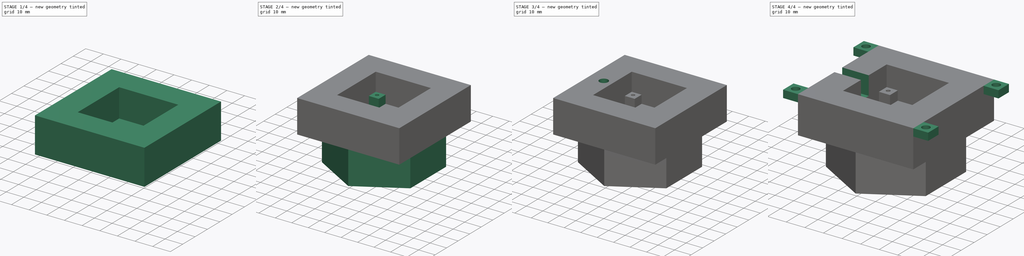
[diagram: build sequence overview — one tinted view per stage of 4, left to right]
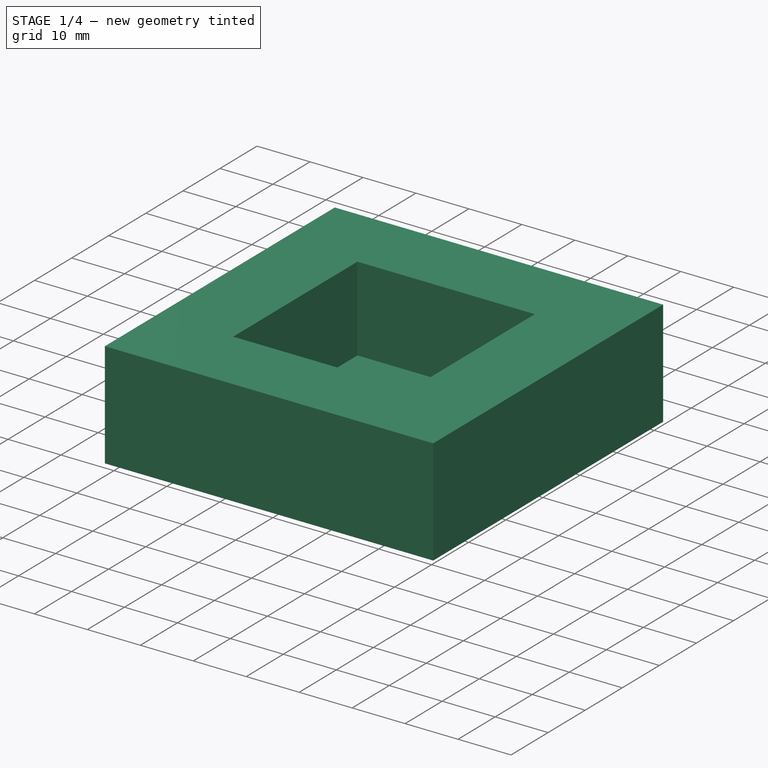
[diagram: stage 1 of 4 — iso view after this stage's code; geometry added in this stage tinted green]
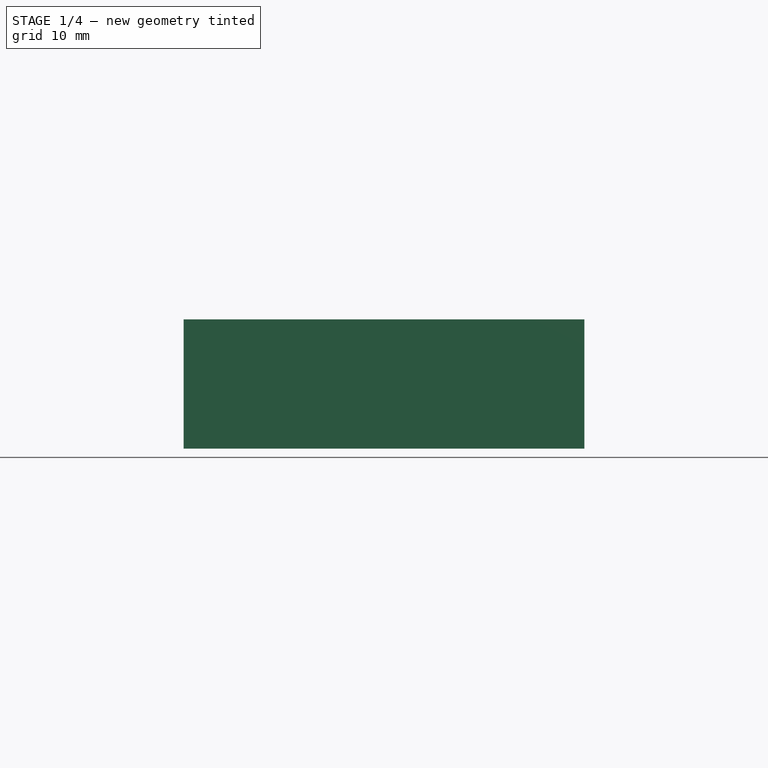
[diagram: stage 1 of 4 — front view after this stage's code; geometry added in this stage tinted green]
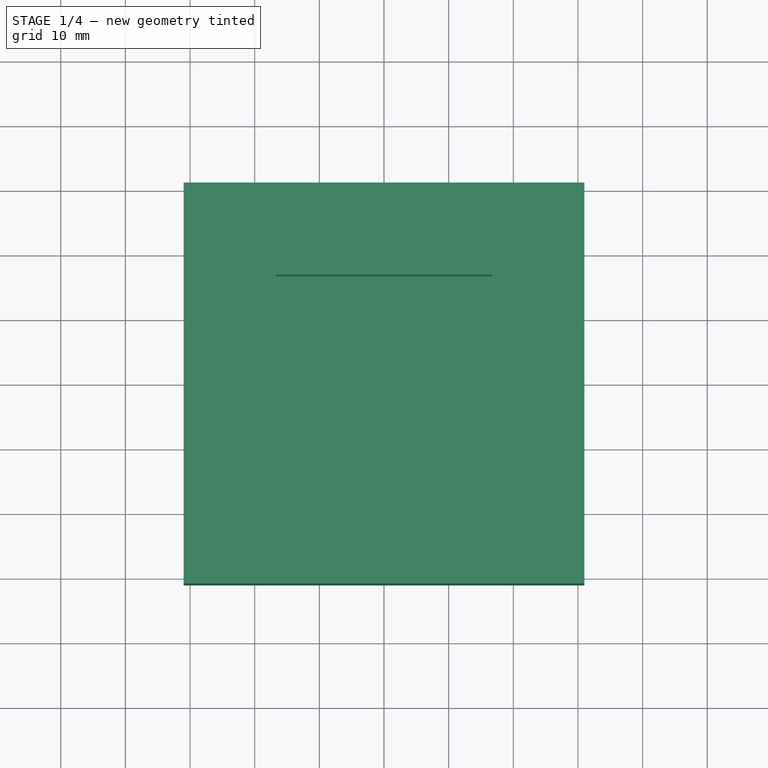
[diagram: stage 1 of 4 — top view after this stage's code; geometry added in this stage tinted green]
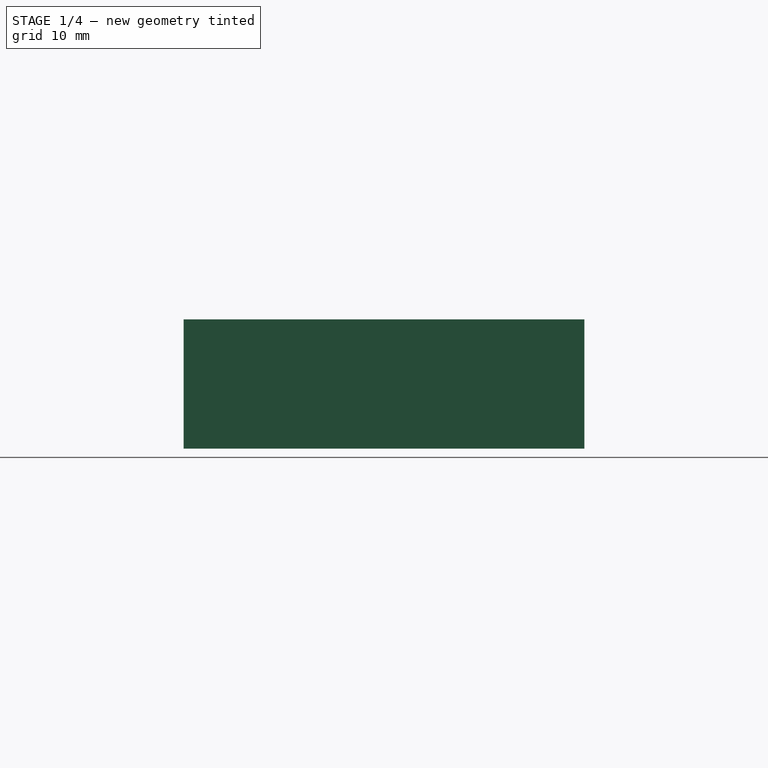
[diagram: stage 1 of 4 — right view after this stage's code; geometry added in this stage tinted green]
FCSTD DOCUMENT  (FreeCAD 0.20R29177 +233 (Git))
Label: cam_down_v2
License: All rights reserved
LicenseURL: http://en.wikipedia.org/wiki/All_rights_reserved
objects: Sketcher::SketchObject×10, PartDesign::Pad×5, PartDesign::Pocket×5, PartDesign::Body×1
note: 31 computed .brp shape members not serialized (recipe doc carries the construction recipe); baked Part::Feature solids carry a one-line shape summary decoded from their .brp

FEATURE [Sketcher::SketchObject] Sketch
  FullyConstrained = true
  MapMode = 5
  Support = -> [XY_Plane]
  sketch-geometry (4):
    g0: LineSegment StartX=-31 StartY=31 StartZ=0 EndX=31 EndY=31 EndZ=0
    g1: LineSegment StartX=31 StartY=31 StartZ=0 EndX=31 EndY=-31 EndZ=0
    g2: LineSegment StartX=31 StartY=-31 StartZ=0 EndX=-31 EndY=-31 EndZ=0
    g3: LineSegment StartX=-31 StartY=-31 StartZ=0 EndX=-31 EndY=31 EndZ=0
  constraints (10):
    c: Coincident(g0,g1)
    c: Coincident(g1,g2)
    c: Coincident(g2,g3)
    c: Coincident(g3,g0)
    c: Horizontal(g2)
    c: Vertical(g1)
    c: DistanceX(g0,g0) = 62
    c: DistanceY(g1,g1) = 62
    c: Symmetric(g0,g0,g-2)
    c: Symmetric(g0,g2,g-1)
FEATURE [PartDesign::Pad] Pad
  Direction = (0,0,1)
  Length = 20
  Length2 = 10
  Profile = -> Sketch
  ReferenceAxis = -> Sketch [N_Axis]
  Type = 0
FEATURE [Sketcher::SketchObject] Sketch001
  FullyConstrained = true
  MapMode = 5
  Placement = pos=(0,0,20) rot=(0,0,1;0rad)
  Support = -> [Pad]
  sketch-geometry (4):
    g0: LineSegment StartX=-16.75 StartY=16.75 StartZ=0 EndX=16.75 EndY=16.75 EndZ=0
    g1: LineSegment StartX=16.75 StartY=16.75 StartZ=0 EndX=16.75 EndY=-16.75 EndZ=0
    g2: LineSegment StartX=16.75 StartY=-16.75 StartZ=0 EndX=-16.75 EndY=-16.75 EndZ=0
    g3: LineSegment StartX=-16.75 StartY=-16.75 StartZ=0 EndX=-16.75 EndY=16.75 EndZ=0
  constraints (10):
    c: Coincident(g0,g1)
    c: Coincident(g1,g2)
    c: Coincident(g2,g3)
    c: Coincident(g3,g0)
    c: Horizontal(g2)
    c: Vertical(g1)
    c: DistanceY(g1,g1) = 33.5
    c: DistanceX(g2,g2) = 33.5
    c: Symmetric(g0,g0,g-2)
    c: Symmetric(g0,g2,g-1)
FEATURE [PartDesign::Pocket] Pocket
  BaseFeature = -> Pad
  Direction = (0,0,-1)
  Length = 16
  Length2 = 5
  Profile = -> Sketch001
  ReferenceAxis = -> Sketch001 [N_Axis]
  Type = 0
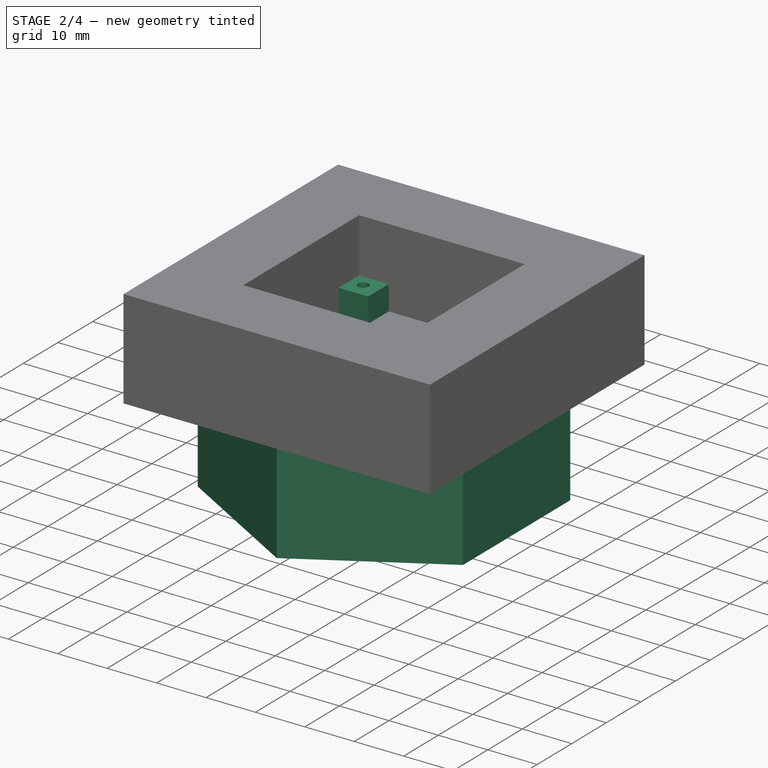
[diagram: stage 2 of 4 — iso view after this stage's code; geometry added in this stage tinted green]
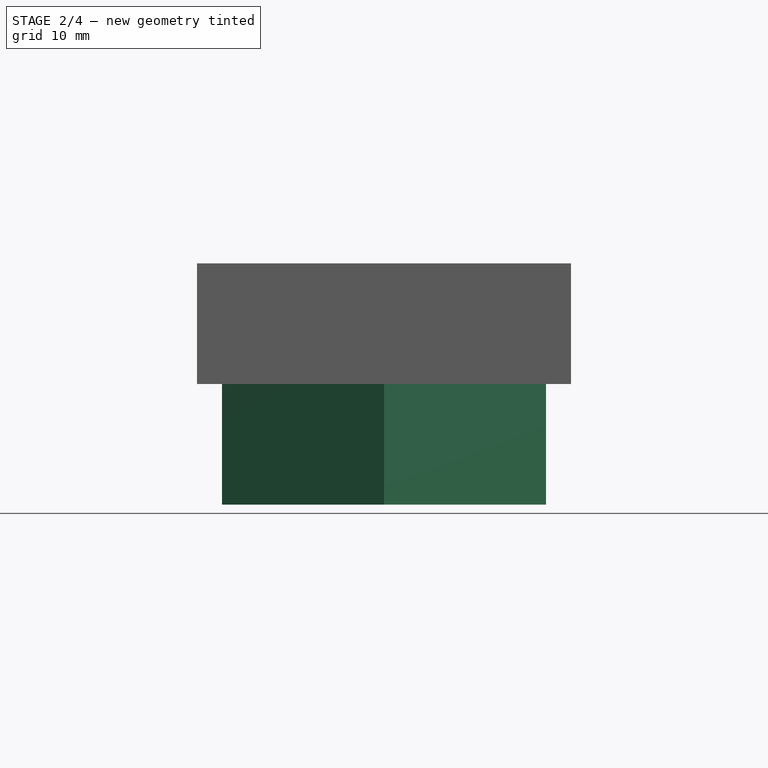
[diagram: stage 2 of 4 — front view after this stage's code; geometry added in this stage tinted green]
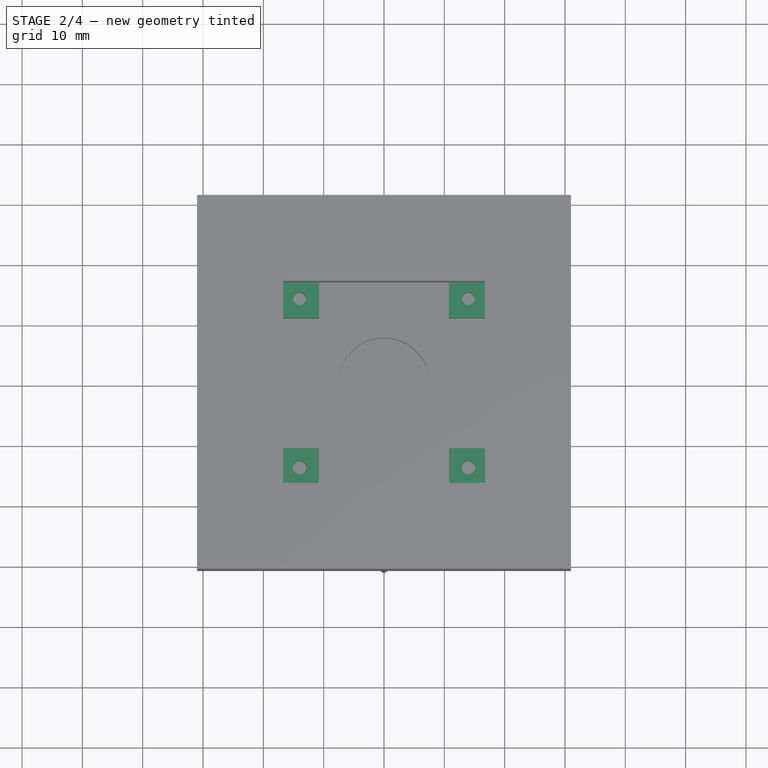
[diagram: stage 2 of 4 — top view after this stage's code; geometry added in this stage tinted green]
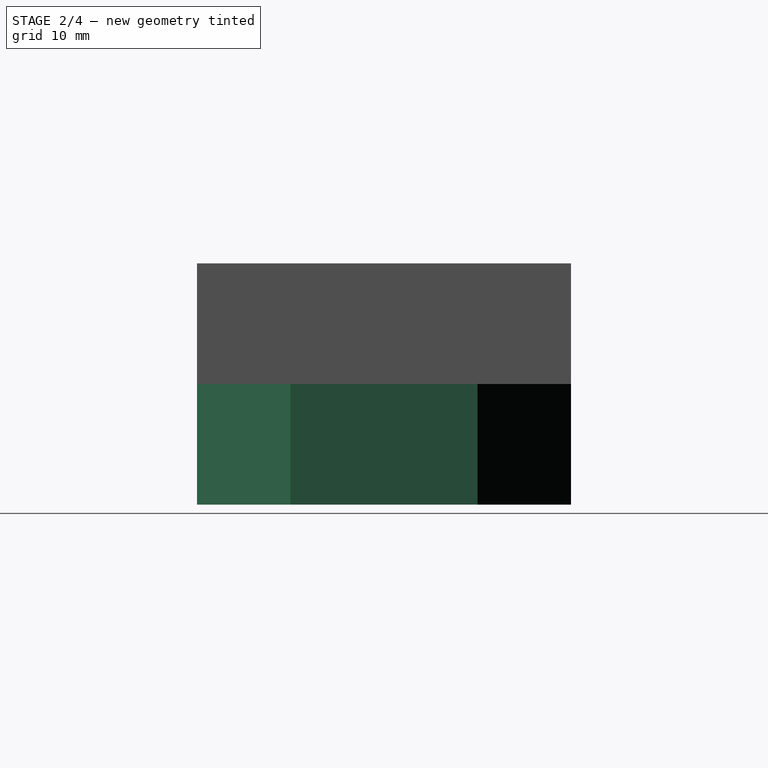
[diagram: stage 2 of 4 — right view after this stage's code; geometry added in this stage tinted green]
FEATURE [Sketcher::SketchObject] Sketch002
  FullyConstrained = false
  MapMode = 5
  Placement = pos=(0,0,4) rot=(0,0,1;0rad)
  Support = -> [Pocket]
  sketch-geometry (1):
    g0: Circle CenterX=0 CenterY=0 CenterZ=0 NormalX=0 NormalY=0 NormalZ=1 AngleXU=0 Radius=7.57861
  constraints (1):
    c: Coincident(g0,g-1)
FEATURE [PartDesign::Pocket] Pocket001
  BaseFeature = -> Pocket
  Direction = (0,0,-1)
  Length = 5
  Length2 = 5
  Profile = -> Sketch002
  ReferenceAxis = -> Sketch002 [N_Axis]
  Type = 0
FEATURE [Sketcher::SketchObject] Sketch003
  ExternalGeometry = -> [Pocket001]
  FullyConstrained = false
  MapMode = 5
  Placement = pos=(0,0,4) rot=(0,0,1;0rad)
  Support = -> [Pocket001]
  sketch-geometry (20):
    g0: LineSegment StartX=-16.75 StartY=16.75 StartZ=0 EndX=-10.763 EndY=16.75 EndZ=0
    g1: LineSegment StartX=-10.763 StartY=16.75 StartZ=0 EndX=-10.763 EndY=10.7788 EndZ=0
    g2: LineSegment StartX=-10.763 StartY=10.7788 StartZ=0 EndX=-16.75 EndY=10.7788 EndZ=0
    g3: LineSegment StartX=-16.75 StartY=10.7788 StartZ=0 EndX=-16.75 EndY=16.75 EndZ=0
    g4: LineSegment StartX=-16.75 StartY=-16.75 StartZ=0 EndX=-10.7906 EndY=-16.75 EndZ=0
    g5: LineSegment StartX=-10.7906 StartY=-16.75 StartZ=0 EndX=-10.7906 EndY=-10.7578 EndZ=0
    g6: LineSegment StartX=-10.7906 StartY=-10.7578 StartZ=0 EndX=-16.75 EndY=-10.7578 EndZ=0
    g7: LineSegment StartX=-16.75 StartY=-10.7578 StartZ=0 EndX=-16.75 EndY=-16.75 EndZ=0
    g8: LineSegment StartX=16.75 StartY=-16.75 StartZ=0 EndX=10.7923 EndY=-16.75 EndZ=0
    g9: LineSegment StartX=10.7923 StartY=-16.75 StartZ=0 EndX=10.7923 EndY=-10.7967 EndZ=0
    g10: LineSegment StartX=10.7923 StartY=-10.7967 StartZ=0 EndX=16.75 EndY=-10.7967 EndZ=0
    g11: LineSegment StartX=16.75 StartY=-10.7967 StartZ=0 EndX=16.75 EndY=-16.75 EndZ=0
    g12: LineSegment StartX=16.75 StartY=16.75 StartZ=0 EndX=10.7559 EndY=16.75 EndZ=0
    g13: LineSegment StartX=10.7559 StartY=16.75 StartZ=0 EndX=10.7559 EndY=10.7913 EndZ=0
    g14: LineSegment StartX=10.7559 StartY=10.7913 StartZ=0 EndX=16.75 EndY=10.7913 EndZ=0
    g15: LineSegment StartX=16.75 StartY=10.7913 StartZ=0 EndX=16.75 EndY=16.75 EndZ=0
    g16: Circle CenterX=-14 CenterY=14 CenterZ=0 NormalX=0 NormalY=0 NormalZ=1 AngleXU=0 Radius=1.05689
    g17: Circle CenterX=14 CenterY=14 CenterZ=0 NormalX=0 NormalY=0 NormalZ=1 AngleXU=0 Radius=1.05178
    g18: Circle CenterX=14 CenterY=-14 CenterZ=0 NormalX=0 NormalY=0 NormalZ=1 AngleXU=0 Radius=1.1422
    g19: Circle CenterX=-14 CenterY=-14 CenterZ=0 NormalX=0 NormalY=0 NormalZ=1 AngleXU=0 Radius=1.1337
  constraints (44):
    c: Coincident(g0,g1)
    c: Coincident(g1,g2)
    c: Coincident(g2,g3)
    c: Coincident(g3,g0)
    c: Horizontal(g0)
    c: Horizontal(g2)
    c: Vertical(g1)
    c: Vertical(g3)
    c: Coincident(g0,g-4)
    c: Coincident(g4,g5)
    c: Coincident(g5,g6)
    c: Coincident(g6,g7)
    c: Coincident(g7,g4)
    c: Horizontal(g4)
    c: Horizontal(g6)
    c: Vertical(g5)
    c: Vertical(g7)
    c: Coincident(g4,g-6)
    c: Coincident(g8,g9)
    c: Coincident(g9,g10)
    c: Coincident(g10,g11)
    c: Coincident(g11,g8)
    c: Horizontal(g8)
    c: Horizontal(g10)
    c: Vertical(g9)
    c: Vertical(g11)
    c: Coincident(g8,g-6)
    c: Coincident(g12,g13)
    c: Coincident(g13,g14)
    c: Coincident(g14,g15)
    c: Coincident(g15,g12)
    c: Horizontal(g12)
    c: Horizontal(g14)
    c: Vertical(g13)
    c: Vertical(g15)
    c: Coincident(g12,g-5)
    c: Distance(g19,g-2) = 14
    c: Distance(g18,g-2) = 14
    c: Distance(g19,g-1) = 14
    c: Distance(g18,g-1) = 14
    c: Distance(g17,g-1) = 14
    c: Distance(g17,g-2) = 14
    c: Distance(g16,g-1) = 14
    c: Distance(g16,g-2) = 14
FEATURE [PartDesign::Pad] Pad001
  BaseFeature = -> Pocket001
  Direction = (0,0,1)
  Length = 5
  Length2 = 10
  Profile = -> Sketch003
  ReferenceAxis = -> Sketch003 [N_Axis]
  Type = 0
FEATURE [Sketcher::SketchObject] Sketch004
  FullyConstrained = true
  MapMode = 5
  Placement = pos=(0,0,0) rot=(1,0,0;3.14159rad)
  Support = -> [Pad001]
  sketch-geometry (7):
    g0: LineSegment StartX=0 StartY=-31 StartZ=0 EndX=26.8468 EndY=-15.5 EndZ=0
    g1: LineSegment StartX=26.8468 StartY=-15.5 StartZ=0 EndX=26.8468 EndY=15.5 EndZ=0
    g2: LineSegment StartX=26.8468 StartY=15.5 StartZ=0 EndX=-1.16103e-11 EndY=31 EndZ=0
    g3: LineSegment StartX=-1.16103e-11 StartY=31 StartZ=0 EndX=-26.8468 EndY=15.5 EndZ=0
    g4: LineSegment StartX=-26.8468 StartY=15.5 StartZ=0 EndX=-26.8468 EndY=-15.5 EndZ=0
    g5: LineSegment StartX=-26.8468 StartY=-15.5 StartZ=0 EndX=0 EndY=-31 EndZ=0
    g6: Circle CenterX=0 CenterY=0 CenterZ=0 NormalX=0 NormalY=0 NormalZ=1 AngleXU=0 Radius=31
  constraints (16):
    c: Coincident(g0,g1)
    c: Coincident(g1,g2)
    c: Coincident(g2,g3)
    c: Coincident(g3,g4)
    c: Coincident(g4,g5)
    c: Coincident(g5,g0)
    c: Equal(g0, g1-g5) x5
    c: PointOnObject(g0,g6)
    c: PointOnObject(g1,g6)
    c: PointOnObject(g2,g6)
    c: PointOnObject(g3,g6)
    c: PointOnObject(g4,g6)
    c: PointOnObject(g5,g6)
    c: Coincident(g6,g-1)
    c: PointOnObject(g5,g-2)
    c: Diameter(g6) = 62
FEATURE [PartDesign::Pad] Pad002
  BaseFeature = -> Pad001
  Direction = (0,0,-1)
  Length = 20
  Length2 = 10
  Profile = -> Sketch004
  ReferenceAxis = -> Sketch004 [N_Axis]
  Type = 0
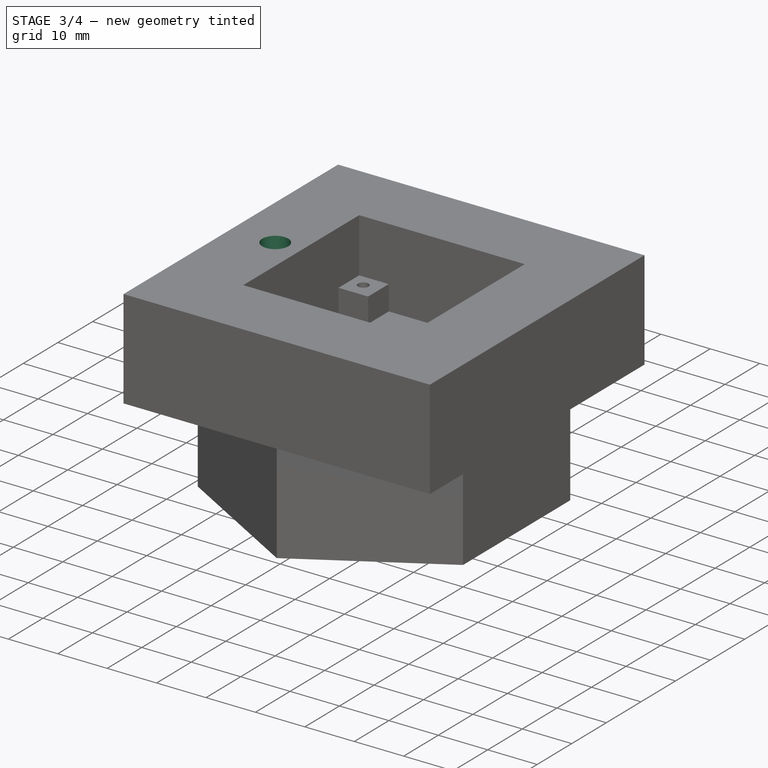
[diagram: stage 3 of 4 — iso view after this stage's code; geometry added in this stage tinted green]
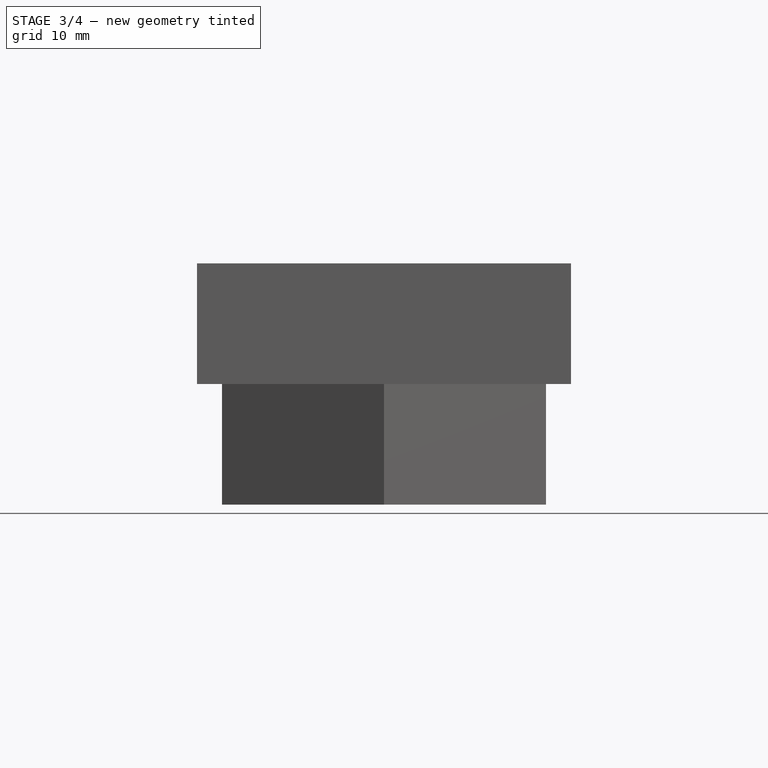
[diagram: stage 3 of 4 — front view after this stage's code; geometry added in this stage tinted green]
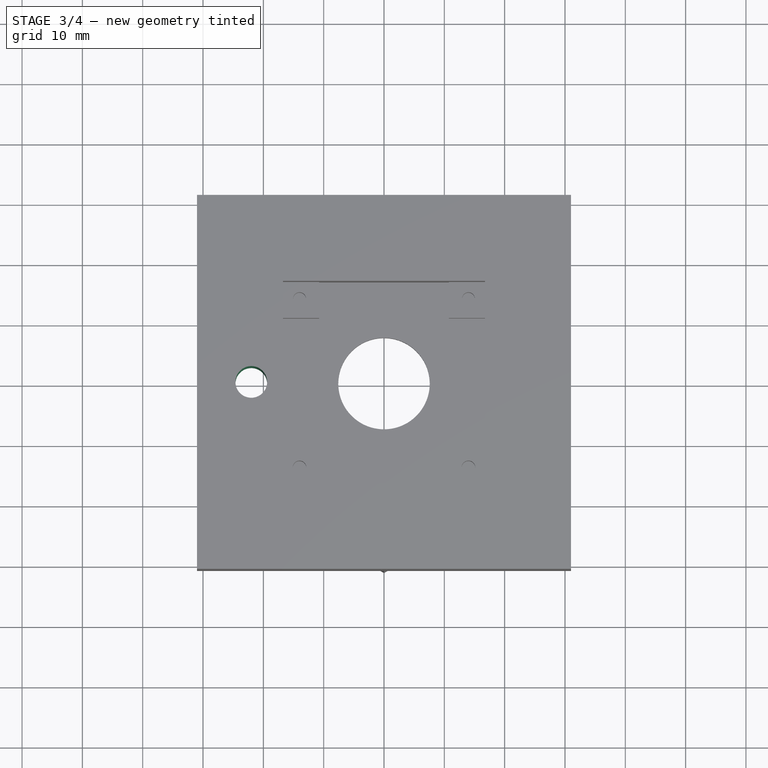
[diagram: stage 3 of 4 — top view after this stage's code; geometry added in this stage tinted green]
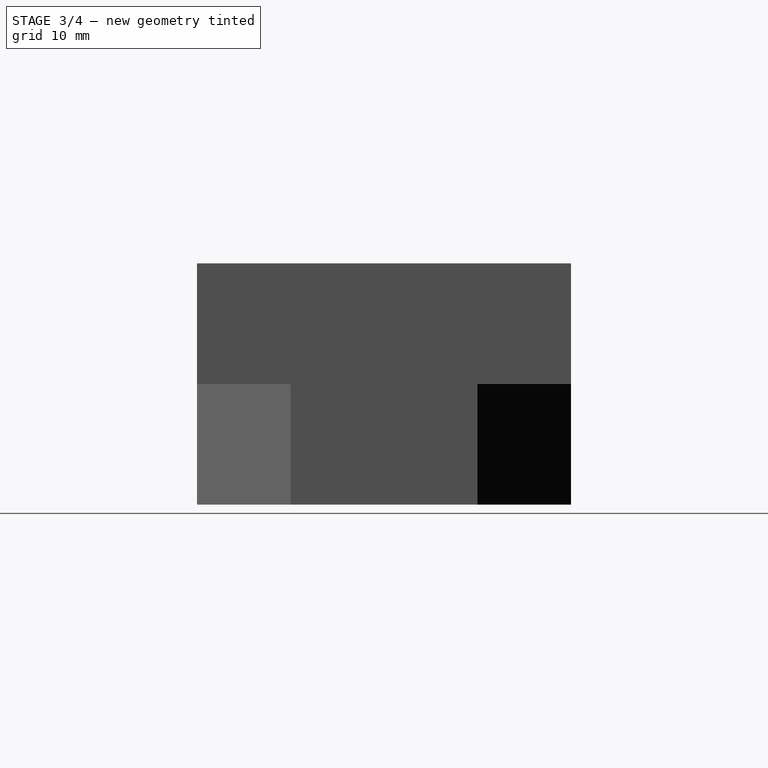
[diagram: stage 3 of 4 — right view after this stage's code; geometry added in this stage tinted green]
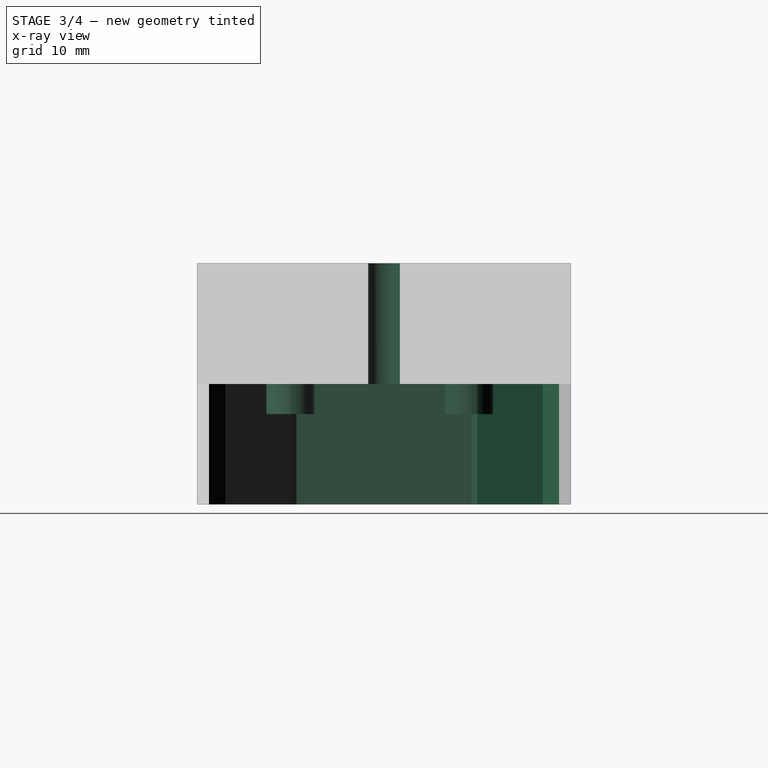
[diagram: stage 3 of 4 — x-ray composite at the right view; earlier geometry ghosted, this stage's added geometry solid]
FEATURE [Sketcher::SketchObject] Sketch026
  FullyConstrained = true
  MapMode = 5
  Placement = pos=(0,0,-20) rot=(1,0,0;3.14159rad)
  sketch-geometry (7):
    g0: LineSegment StartX=0 StartY=-29 StartZ=0 EndX=25.1147 EndY=-14.5 EndZ=0
    g1: LineSegment StartX=25.1147 StartY=-14.5 StartZ=0 EndX=25.1147 EndY=14.5 EndZ=0
    g2: LineSegment StartX=25.1147 StartY=14.5 StartZ=0 EndX=-9.22142e-11 EndY=29 EndZ=0
    g3: LineSegment StartX=-9.22142e-11 StartY=29 StartZ=0 EndX=-25.1147 EndY=14.5 EndZ=0
    g4: LineSegment StartX=-25.1147 StartY=14.5 StartZ=0 EndX=-25.1147 EndY=-14.5 EndZ=0
    g5: LineSegment StartX=-25.1147 StartY=-14.5 StartZ=0 EndX=0 EndY=-29 EndZ=0
    g6: Circle CenterX=0 CenterY=1e-16 CenterZ=0 NormalX=0 NormalY=0 NormalZ=1 AngleXU=0 Radius=29
  constraints (16):
    c: Coincident(g0,g1)
    c: Coincident(g1,g2)
    c: Coincident(g2,g3)
    c: Coincident(g3,g4)
    c: Coincident(g4,g5)
    c: Coincident(g5,g0)
    c: Equal(g0, g1-g5) x5
    c: PointOnObject(g0,g6)
    c: PointOnObject(g1,g6)
    c: PointOnObject(g2,g6)
    c: PointOnObject(g3,g6)
    c: PointOnObject(g4,g6)
    c: PointOnObject(g5,g6)
    c: Coincident(g6,g-1)
    c: PointOnObject(g5,g-2)
    c: Diameter(g6) = 58
FEATURE [Sketcher::SketchObject] Sketch027
  FullyConstrained = true
  MapMode = 5
  sketch-geometry (4):
    g0: Circle CenterX=0 CenterY=-15.5 CenterZ=0 NormalX=0 NormalY=0 NormalZ=1 AngleXU=0 Radius=4
    g1: Circle CenterX=0 CenterY=14.1 CenterZ=0 NormalX=0 NormalY=0 NormalZ=1 AngleXU=0 Radius=4
    g2: Circle CenterX=0 CenterY=14.1 CenterZ=0 NormalX=0 NormalY=0 NormalZ=1 AngleXU=0 Radius=2.1
    g3: Circle CenterX=0 CenterY=-15.5 CenterZ=0 NormalX=0 NormalY=0 NormalZ=1 AngleXU=0 Radius=2.1
  constraints (10):
    c: PointOnObject(g0,g-2)
    c: PointOnObject(g1,g-2)
    c: Distance(g0,g1) = 29.6
    c: Distance(g0,g-1) = 15.5
    c: Diameter(g1) = 8
    c: Diameter(g0) = 8
    c: Coincident(g2,g1)
    c: Coincident(g3,g0)
    c: Diameter(g2) = 4.2
    c: Diameter(g3) = 4.2
FEATURE [PartDesign::Pocket] Pocket002
  BaseFeature = -> Pad002
  Direction = (0,1e-16,1)
  Length = 20
  Length2 = 5
  Profile = -> Sketch026
  ReferenceAxis = -> Sketch026 [N_Axis]
  Type = 0
FEATURE [PartDesign::Pad] Pad003
  BaseFeature = -> Pocket002
  Direction = (0,0,1)
  Length = 5
  Length2 = 10
  Profile = -> Sketch027
  ReferenceAxis = -> Sketch027 [N_Axis]
  Reversed = true
  Type = 0
FEATURE [Sketcher::SketchObject] Sketch028
  FullyConstrained = false
  MapMode = 5
  Placement = pos=(0,0,20) rot=(0,0,1;0rad)
  Support = -> [Pad003]
  sketch-geometry (1):
    g0: Circle CenterX=-22 CenterY=0 CenterZ=0 NormalX=0 NormalY=0 NormalZ=1 AngleXU=0 Radius=2.62729
  constraints (1):
    c: PointOnObject(g0,g-1)
FEATURE [PartDesign::Pocket] Pocket003
  BaseFeature = -> Pad003
  Direction = (0,0,-1)
  Length = 21
  Length2 = 5
  Profile = -> Sketch028
  ReferenceAxis = -> Sketch028 [N_Axis]
  Type = 0
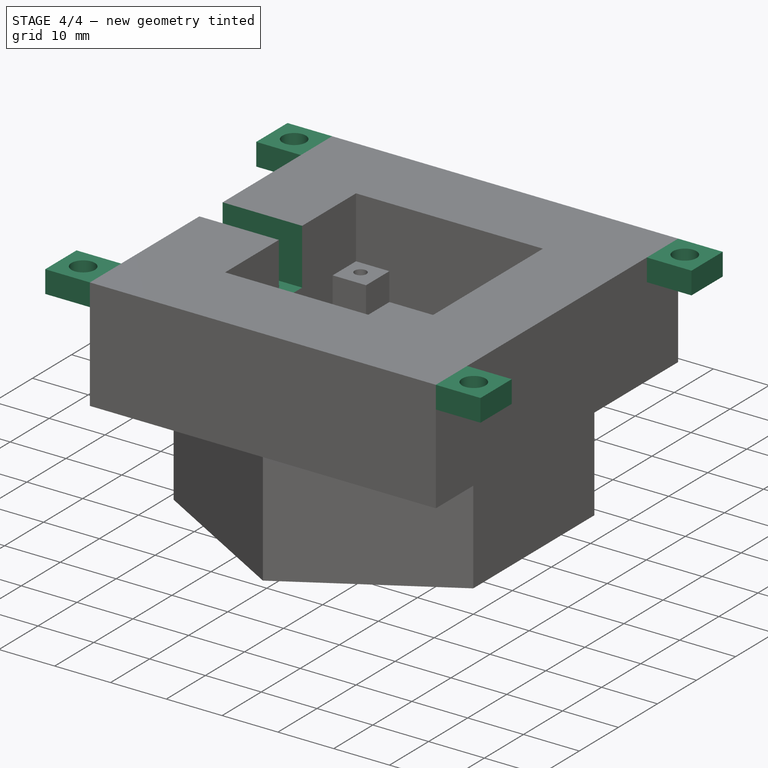
[diagram: stage 4 of 4 — iso view after this stage's code; geometry added in this stage tinted green]
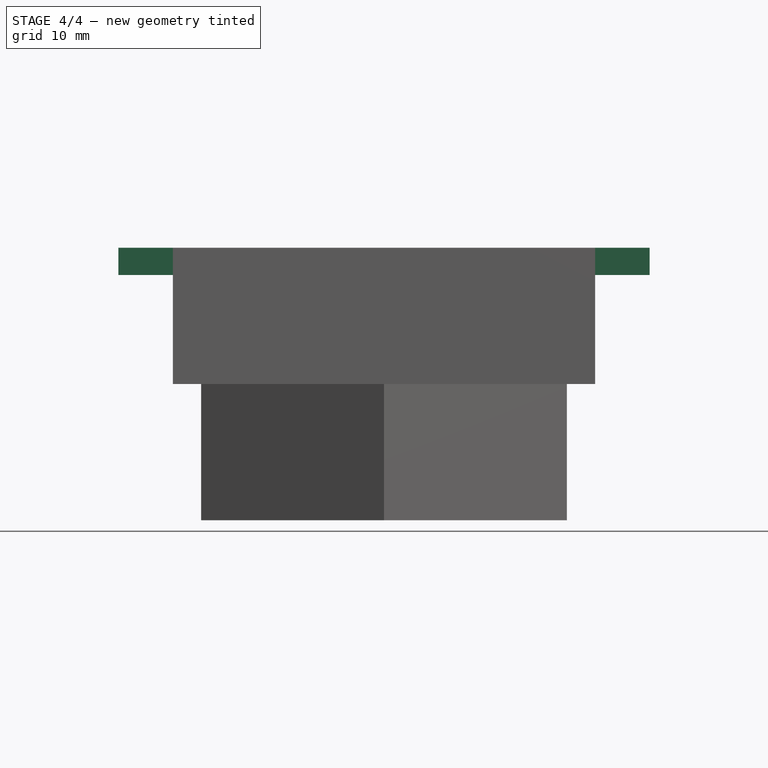
[diagram: stage 4 of 4 — front view after this stage's code; geometry added in this stage tinted green]
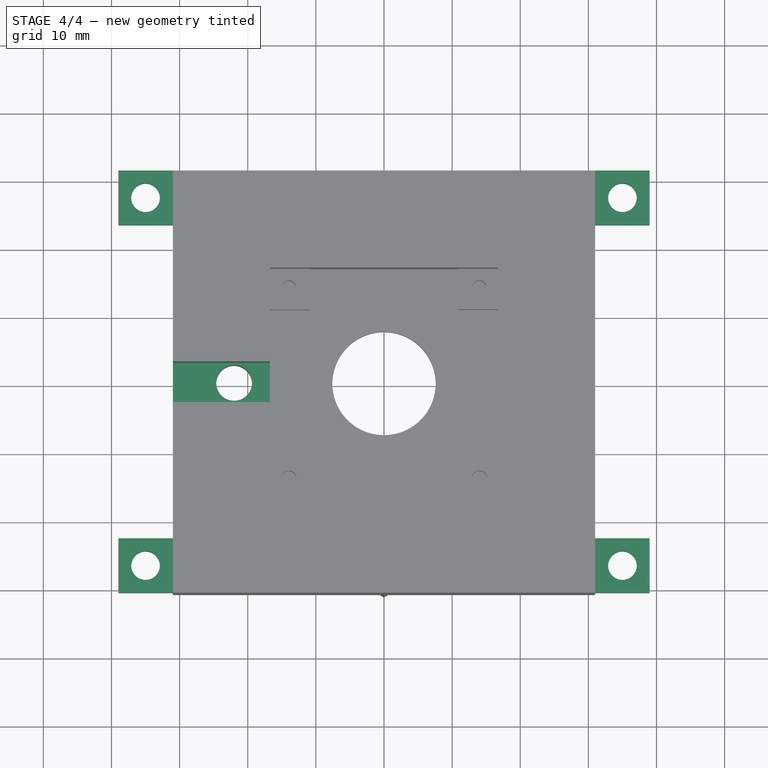
[diagram: stage 4 of 4 — top view after this stage's code; geometry added in this stage tinted green]
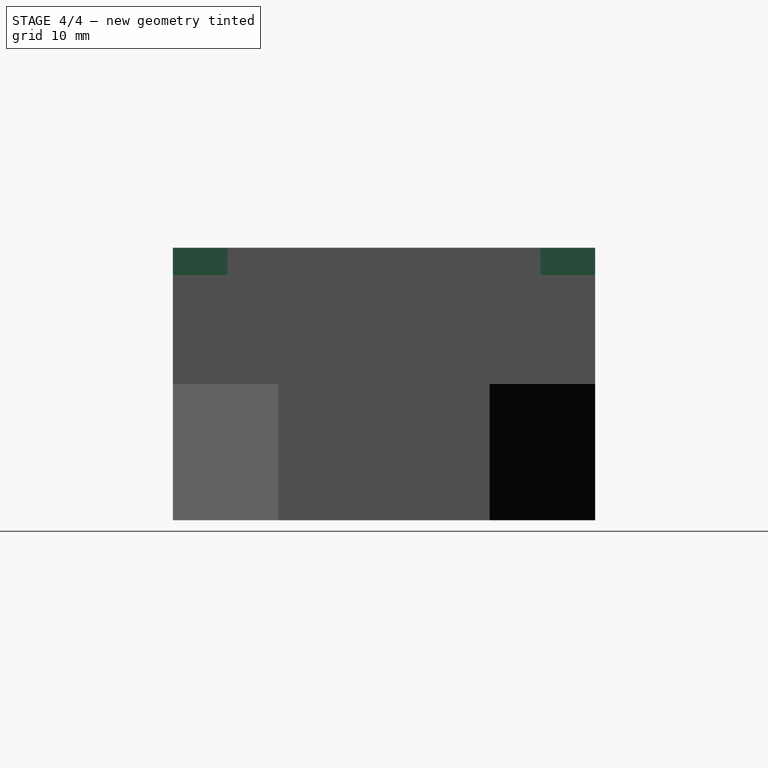
[diagram: stage 4 of 4 — right view after this stage's code; geometry added in this stage tinted green]
FEATURE [Sketcher::SketchObject] Sketch030
  ExternalGeometry = -> [Pocket003]
  FullyConstrained = false
  MapMode = 5
  Placement = pos=(0,0,20) rot=(0,0,1;0rad)
  sketch-geometry (20):
    g0: LineSegment StartX=-31 StartY=31 StartZ=0 EndX=-39 EndY=31 EndZ=0
    g1: LineSegment StartX=-39 StartY=31 StartZ=0 EndX=-39 EndY=23 EndZ=0
    g2: LineSegment StartX=-39 StartY=23 StartZ=0 EndX=-31 EndY=23 EndZ=0
    g3: LineSegment StartX=-31 StartY=23 StartZ=0 EndX=-31 EndY=31 EndZ=0
    g4: LineSegment StartX=-31 StartY=-31 StartZ=0 EndX=-39 EndY=-31 EndZ=0
    g5: LineSegment StartX=-39 StartY=-31 StartZ=0 EndX=-39 EndY=-23 EndZ=0
    g6: LineSegment StartX=-39 StartY=-23 StartZ=0 EndX=-31 EndY=-23 EndZ=0
    g7: LineSegment StartX=-31 StartY=-23 StartZ=0 EndX=-31 EndY=-31 EndZ=0
    g8: LineSegment StartX=31 StartY=31 StartZ=0 EndX=39 EndY=31 EndZ=0
    g9: LineSegment StartX=39 StartY=31 StartZ=0 EndX=39 EndY=23 EndZ=0
    g10: LineSegment StartX=39 StartY=23 StartZ=0 EndX=31 EndY=23 EndZ=0
    g11: LineSegment StartX=31 StartY=23 StartZ=0 EndX=31 EndY=31 EndZ=0
    g12: LineSegment StartX=31 StartY=-31 StartZ=0 EndX=39 EndY=-31 EndZ=0
    g13: LineSegment StartX=39 StartY=-31 StartZ=0 EndX=39 EndY=-23 EndZ=0
    g14: LineSegment StartX=39 StartY=-23 StartZ=0 EndX=31 EndY=-23 EndZ=0
    g15: LineSegment StartX=31 StartY=-23 StartZ=0 EndX=31 EndY=-31 EndZ=0
    g16: Circle CenterX=-35 CenterY=27 CenterZ=0 NormalX=0 NormalY=0 NormalZ=1 AngleXU=0 Radius=2.1
    g17: Circle CenterX=35 CenterY=27 CenterZ=0 NormalX=0 NormalY=0 NormalZ=1 AngleXU=0 Radius=2.1
    g18: Circle CenterX=35 CenterY=-27 CenterZ=0 NormalX=0 NormalY=0 NormalZ=1 AngleXU=0 Radius=2.1
    g19: Circle CenterX=-35 CenterY=-27 CenterZ=0 NormalX=0 NormalY=0 NormalZ=1 AngleXU=0 Radius=2.1
  constraints (52):
    c: Coincident(g0,g1)
    c: Coincident(g1,g2)
    c: Coincident(g2,g3)
    c: Coincident(g3,g0)
    c: Horizontal(g0)
    c: Horizontal(g2)
    c: Vertical(g1)
    c: Vertical(g3)
    c: Coincident(g4,g5)
    c: Coincident(g5,g6)
    c: Coincident(g6,g7)
    c: Coincident(g7,g4)
    c: Horizontal(g4)
    c: Horizontal(g6)
    c: Vertical(g5)
    c: Vertical(g7)
    c: Coincident(g8,g9)
    c: Coincident(g9,g10)
    c: Coincident(g10,g11)
    c: Coincident(g11,g8)
    c: Horizontal(g8)
    c: Horizontal(g10)
    c: Vertical(g9)
    c: Vertical(g11)
    c: Coincident(g12,g13)
    c: Coincident(g13,g14)
    c: Coincident(g14,g15)
    c: Coincident(g15,g12)
    c: Horizontal(g12)
    c: Horizontal(g14)
    c: Vertical(g13)
    c: Vertical(g15)
    c: Diameter(g16) = 4.2
    c: Equal(g17,g18)
    c: Equal(g17,g19)
    c: Diameter(g17) = 4.2
    c: DistanceX(g0,g0) = 8
    c: DistanceX(g6,g6) = 8
    c: DistanceX(g14,g14) = 8
    c: DistanceX(g8,g8) = 8
    c: DistanceY(g9,g9) = 8
    c: DistanceY(g13,g13) = 8
    c: DistanceY(g5,g5) = 8
    c: Distance(g19,g7) = 4
    c: Distance(g19,g4) = 4
    c: Distance(g18,g15) = 4
    c: Distance(g18,g12) = 4
    c: Distance(g17,g11) = 4
    c: Distance(g17,g8) = 4
    c: Distance(g16,g3) = 4
    c: Distance(g16,g2) = 4
    c: DistanceY(g1,g1) = 8
FEATURE [PartDesign::Pad] Pad004
  BaseFeature = -> Pocket003
  Direction = (0,0,1)
  Length = 4
  Length2 = 10
  Profile = -> Sketch030
  ReferenceAxis = -> Sketch030 [N_Axis]
  Reversed = true
  Type = 0
FEATURE [Sketcher::SketchObject] Sketch031
  FullyConstrained = false
  MapMode = 5
  Placement = pos=(0,0,20) rot=(0,0,1;0rad)
  Support = -> [Pad004]
  sketch-geometry (4):
    g0: LineSegment StartX=-32.0714 StartY=2.97237 StartZ=0 EndX=-15.4237 EndY=2.97237 EndZ=0
    g1: LineSegment StartX=-15.4237 StartY=2.97237 StartZ=0 EndX=-15.4237 EndY=-2.9873 EndZ=0
    g2: LineSegment StartX=-15.4237 StartY=-2.9873 StartZ=0 EndX=-32.0714 EndY=-2.9873 EndZ=0
    g3: LineSegment StartX=-32.0714 StartY=-2.9873 StartZ=0 EndX=-32.0714 EndY=2.97237 EndZ=0
  constraints (8):
    c: Coincident(g0,g1)
    c: Coincident(g1,g2)
    c: Coincident(g2,g3)
    c: Coincident(g3,g0)
    c: Horizontal(g0)
    c: Horizontal(g2)
    c: Vertical(g1)
    c: Vertical(g3)
FEATURE [PartDesign::Pocket] Pocket004
  BaseFeature = -> Pad004
  Direction = (0,0,-1)
  Length = 10
  Length2 = 5
  Profile = -> Sketch031
  ReferenceAxis = -> Sketch031 [N_Axis]
  Type = 0
FEATURE [PartDesign::Body] Body
  Group = -> [Sketch,Pad,Sketch001,Pocket,Sketch002,Pocket001,Sketch003,Pad001,Sketch004,Pad002,Sketch026,Sketch027,Pocket002,Pad003,Sketch028,Pocket003,Sketch030,Pad004,Sketch031,Pocket004]
  Origin = -> Origin
  Tip = -> Pocket004
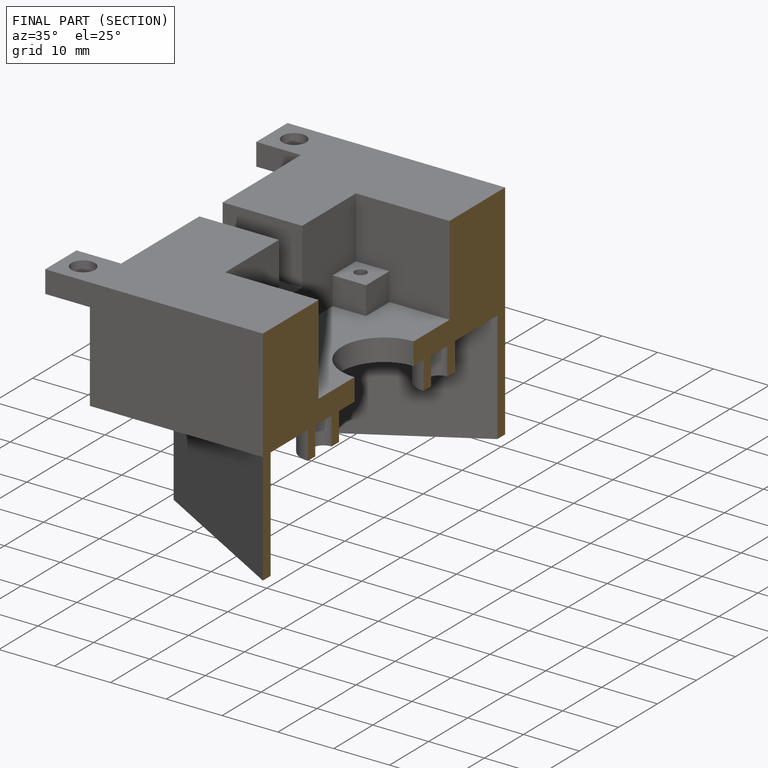
[diagram: finished part — half-section view (interior)]
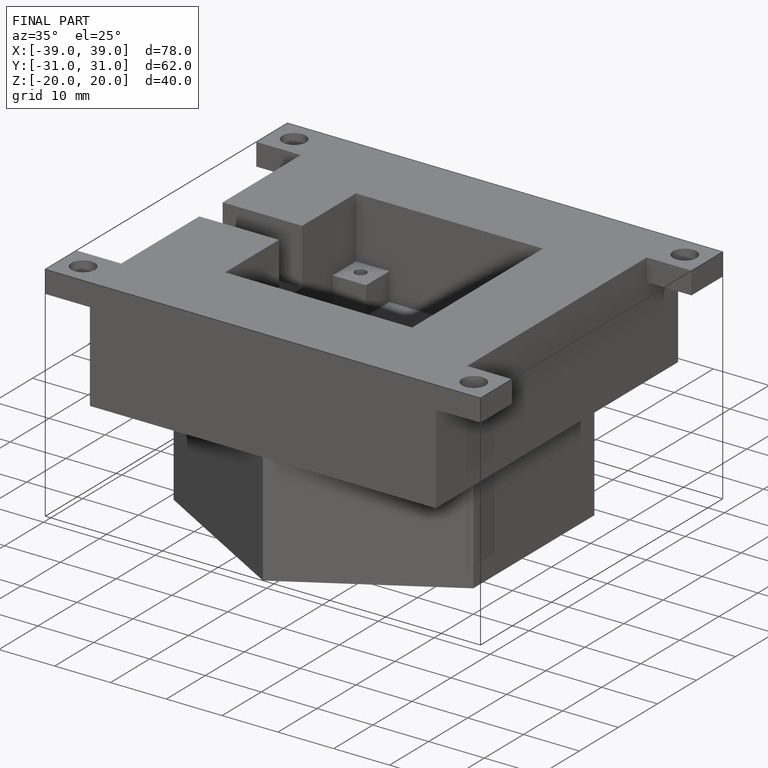
[diagram: finished part — iso view with bounding-box wireframe]
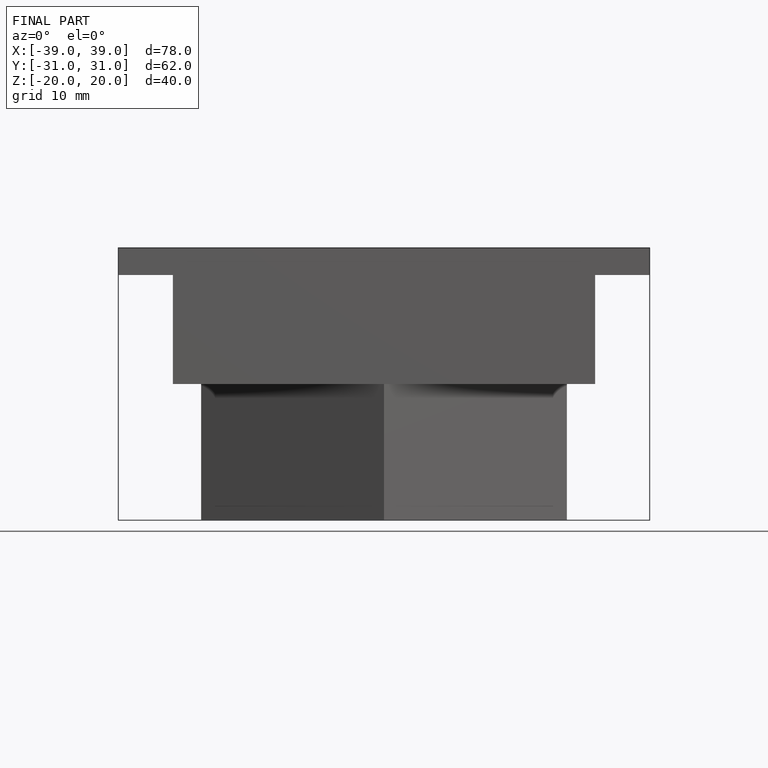
[diagram: finished part — front view with bounding-box wireframe]
